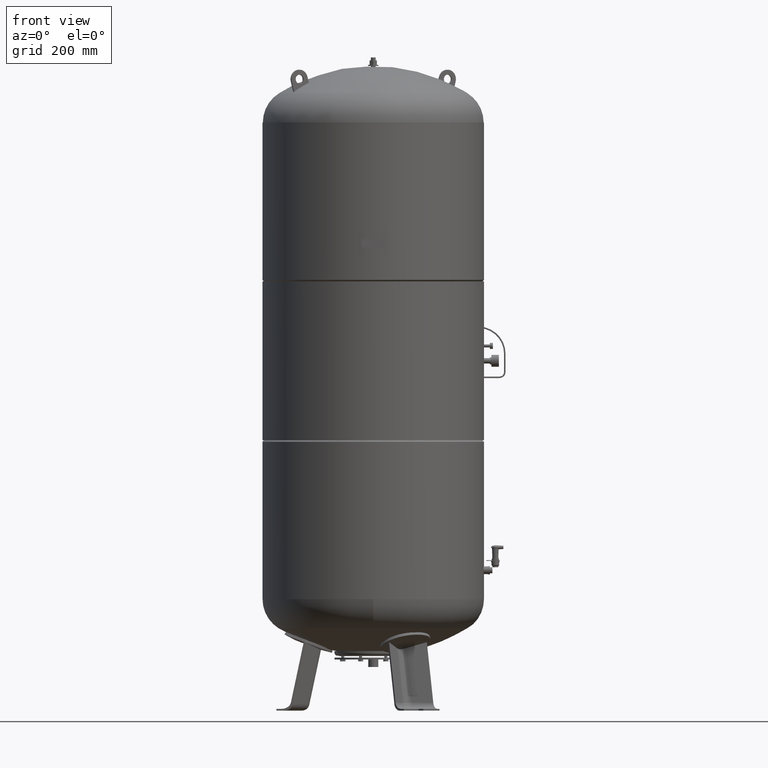
[diagram: clean part render]
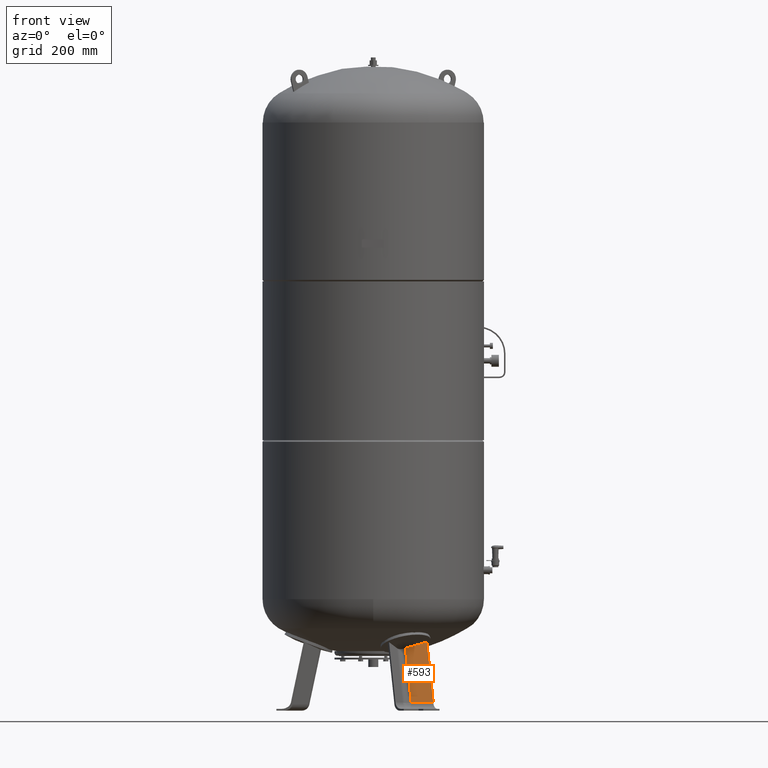
[diagram: same view with one face highlighted and labeled with its STEP entity id]
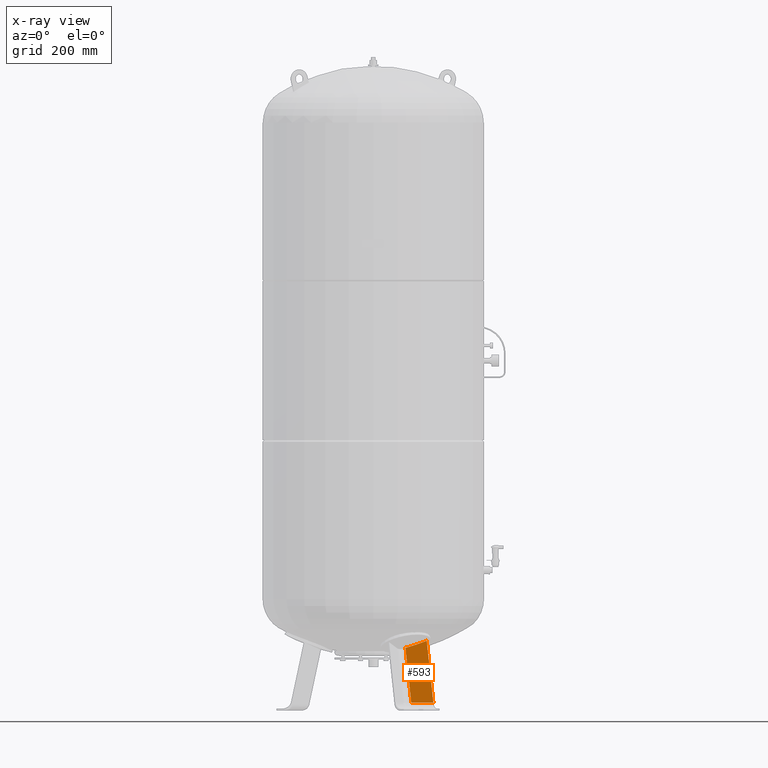
[diagram: x-ray of the same camera — body ghosted, the highlighted face saturated]
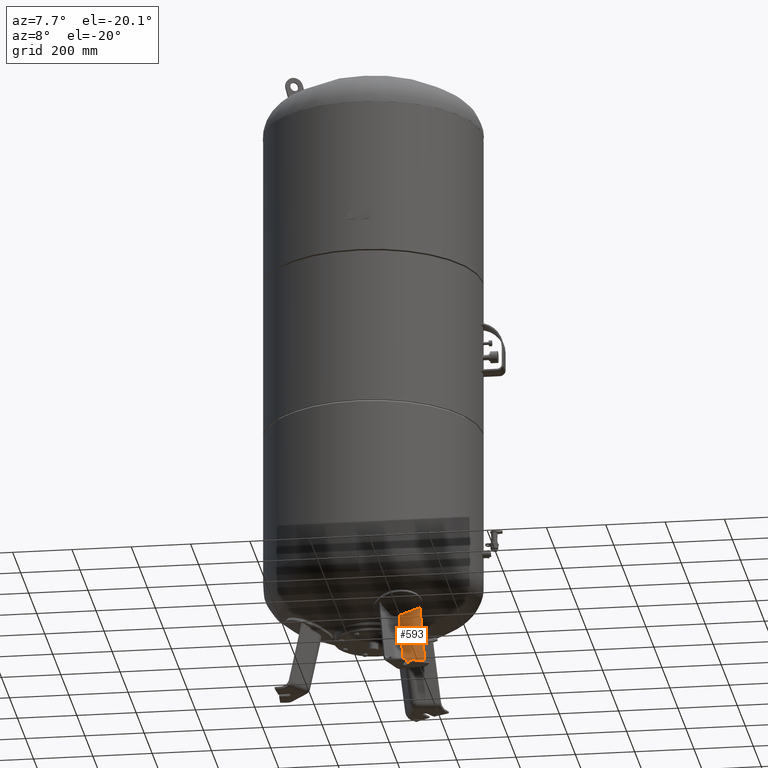
[diagram: same view with one face highlighted and labeled with its STEP entity id]
A machine part, front view. The second image highlights one B-rep face of the part: STEP entity #593.
The next image is the same camera in x-ray: the body ghosted, the highlighted face saturated — about 0% of this face is hidden behind the body in this view.
A second angle (auxiliary view) of the same face is appended — the face is thin or edge-on in the first view.
In plain terms, the highlighted planar face has unit normal (-0.1854, -0.9697, 0.1588).
Its self-contained STEP definition (entity closure, byte-faithful):
#342=CARTESIAN_POINT('',(107.664923522317620,-154.208216080562690,209.306223167677190));
#343=VERTEX_POINT('',#342);
#361=CARTESIAN_POINT('',(178.745124304571050,-163.919904561021640,233.000000000000030));
#362=VERTEX_POINT('',#361);
#363=CARTESIAN_POINT('',(178.745124304571050,-163.919904561021640,233.000000000000030));
#364=CARTESIAN_POINT('',(164.486965149242990,-162.084372104026930,227.559845947390220));
#365=CARTESIAN_POINT('',(150.199130429623300,-160.179781371720960,222.506751583386380));
#366=CARTESIAN_POINT('',(128.660594851697170,-157.204447917036390,215.525731482895680));
#367=CARTESIAN_POINT('',(121.379616581859520,-156.180494131630410,213.276729921399780));
#368=CARTESIAN_POINT('',(111.964792433219500,-154.830314351135940,210.528203562929860));
#369=CARTESIAN_POINT('',(109.814001985848110,-154.520081790807520,209.911227339780880));
#370=CARTESIAN_POINT('',(107.664923522317620,-154.208216080562690,209.306223167677190));
#371=B_SPLINE_CURVE_WITH_KNOTS('',3,(#363,#364,#365,#366,#367,#368,#369,#370),.UNSPECIFIED.,.F.,.U.,(4,2,2,4),(536.144034177567730,540.433260676197730,542.629325785795340,543.280185670864850),.UNSPECIFIED.);
#372=EDGE_CURVE('',#362,#343,#371,.T.);
#533=CARTESIAN_POINT('',(200.635267289667210,-201.834744396155680,27.029948423057281));
#534=VERTEX_POINT('',#533);
#535=CARTESIAN_POINT('',(200.635267289667210,-201.834744396155680,27.029948423057281));
#536=DIRECTION('',(-0.103955845408880,0.180056805991957,0.978147600733805));
#537=VECTOR('',#536,210.571545053552460);
#538=LINE('',#535,#537);
#539=EDGE_CURVE('',#534,#362,#538,.T.);
#570=CARTESIAN_POINT('',(210.706754317925000,-219.279071636869080,-67.735293817669458));
#571=DIRECTION('',(-0.185430570007244,-0.969740897595359,0.158802063077709));
#572=DIRECTION('',(-0.103955845408880,0.180056805991956,0.978147600733806));
#573=AXIS2_PLACEMENT_3D('',#570,#571,#572);
#574=PLANE('',#573);
#575=CARTESIAN_POINT('',(127.036932639186010,-187.761520115666200,27.029948423057284));
#576=VERTEX_POINT('',#575);
#577=CARTESIAN_POINT('',(127.036932639186010,-187.761520115666200,27.029948423057284));
#578=DIRECTION('',(-0.103955845408880,0.180056805991956,0.978147600733805));
#579=VECTOR('',#578,186.348435152196260);
#580=LINE('',#577,#579);
#581=EDGE_CURVE('',#576,#343,#580,.T.);
#582=ORIENTED_EDGE('',*,*,#581,.F.);
#583=CARTESIAN_POINT('',(200.635267289667210,-201.834744396155680,27.029948423057281));
#584=DIRECTION('',(-0.982204642422582,0.187813845079450,4.741265E-017));
#585=VECTOR('',#584,74.931772333057637);
#586=LINE('',#583,#585);
#587=EDGE_CURVE('',#534,#576,#586,.T.);
#588=ORIENTED_EDGE('',*,*,#587,.F.);
#589=ORIENTED_EDGE('',*,*,#539,.T.);
#590=ORIENTED_EDGE('',*,*,#372,.T.);
#591=EDGE_LOOP('',(#582,#588,#589,#590));
#592=FACE_OUTER_BOUND('',#591,.T.);
#593=ADVANCED_FACE('',(#592),#574,.T.);